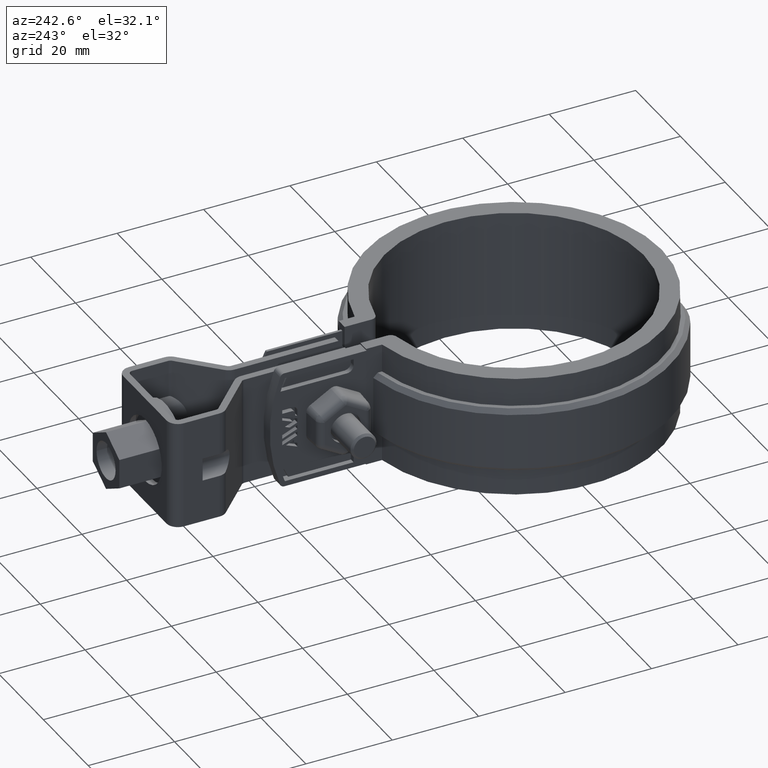
[diagram: clean part render]
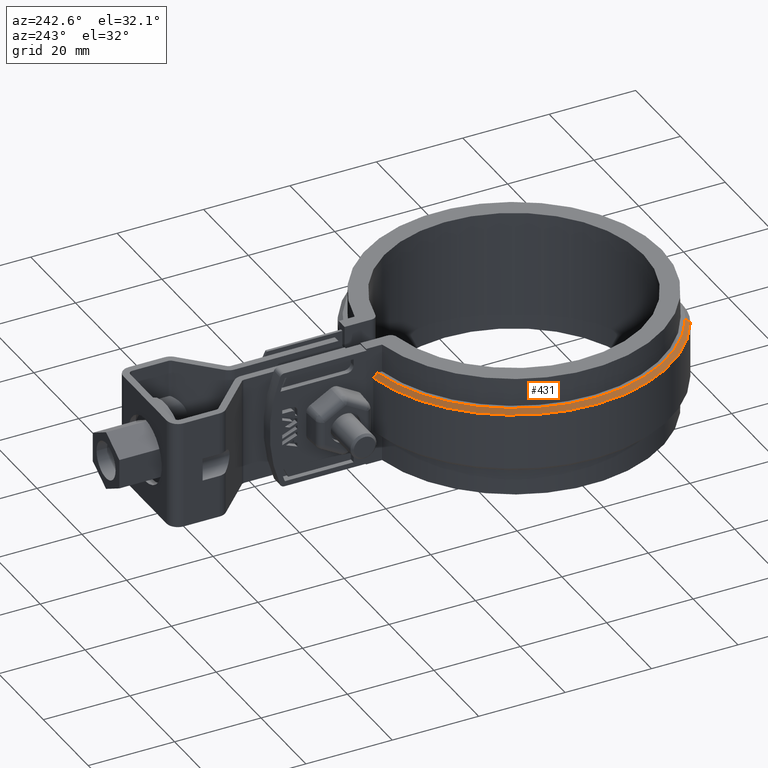
[diagram: same view with one face highlighted and labeled with its STEP entity id]
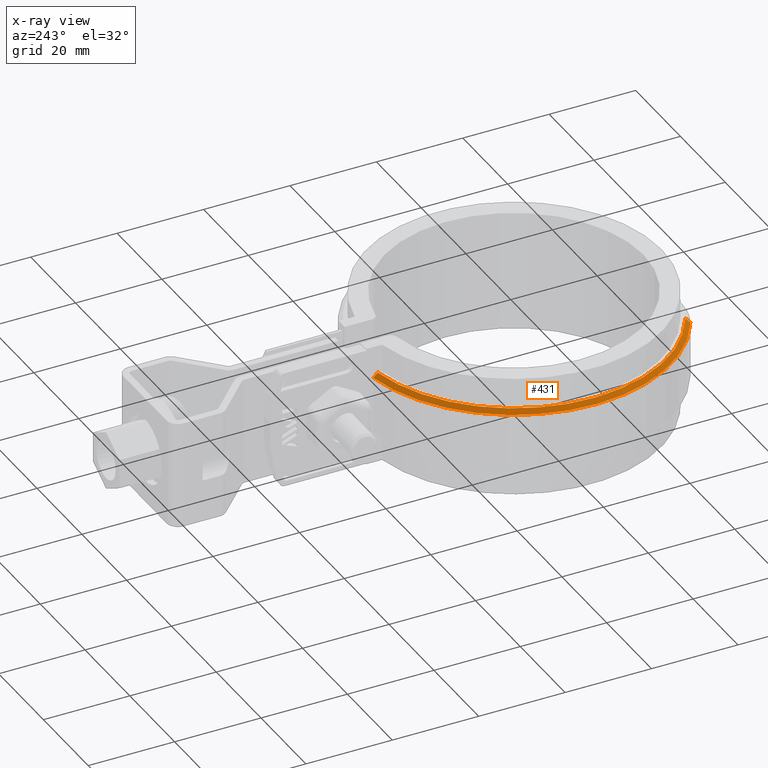
[diagram: x-ray of the same camera — body ghosted, the highlighted face saturated]
A machine part, auxiliary view. The second image highlights one B-rep face of the part: STEP entity #431.
The next image is the same camera in x-ray: the body ghosted, the highlighted face saturated — about 0% of this face is hidden behind the body in this view.
In plain terms, the highlighted conical surface has half-angle 45 deg.
Its self-contained STEP definition (entity closure, byte-faithful):
#431 = ADVANCED_FACE( '', ( #851 ), #852, .T. );
#851 = FACE_OUTER_BOUND( '', #1894, .T. );
#852 = CONICAL_SURFACE( '', #1895, 35.2450000000000, 0.785398163397450 );
#1894 = EDGE_LOOP( '', ( #4204, #4205, #4206, #4207 ) );
#1895 = AXIS2_PLACEMENT_3D( '', #4208, #4209, #4210 );
#4204 = ORIENTED_EDGE( '', *, *, #6999, .F. );
#4205 = ORIENTED_EDGE( '', *, *, #7058, .F. );
#4206 = ORIENTED_EDGE( '', *, *, #6980, .F. );
#4207 = ORIENTED_EDGE( '', *, *, #7034, .F. );
#4208 = CARTESIAN_POINT( '', ( 8.67361737988404E-016, 0.000000000000000, -5.00000000000000 ) );
#4209 = DIRECTION( '', ( 0.000000000000000, 0.000000000000000, -1.00000000000000 ) );
#4210 = DIRECTION( '', ( -1.00000000000000, 0.000000000000000, 0.000000000000000 ) );
#6980 = EDGE_CURVE( '', #8038, #8039, #8040, .T. );
#6999 = EDGE_CURVE( '', #8071, #8073, #8074, .F. );
#7034 = EDGE_CURVE( '', #8073, #8038, #8137, .F. );
#7058 = EDGE_CURVE( '', #8039, #8071, #8181, .T. );
#8038 = VERTEX_POINT( '', #10623 );
#8039 = VERTEX_POINT( '', #10624 );
#8040 = LINE( '', #10625, #10626 );
#8071 = VERTEX_POINT( '', #10735 );
#8073 = VERTEX_POINT( '', #10738 );
#8074 = B_SPLINE_CURVE_WITH_KNOTS( '', 3, ( #10739, #10740, #10741, #10742 ), .UNSPECIFIED., .F., .F., ( 4, 4 ), ( 707.149335593705, 707.150773428236 ), .UNSPECIFIED. );
#8137 = CIRCLE( '', #11014, 35.2450000000000 );
#8181 = CIRCLE( '', #11179, 36.2450000000000 );
#10623 = CARTESIAN_POINT( '', ( -16.6156729905385, -31.0826227347611, -5.00000000000000 ) );
#10624 = CARTESIAN_POINT( '', ( -17.0871064701963, -31.9645243586726, -6.00000000000000 ) );
#10625 = CARTESIAN_POINT( '', ( -16.6156729905385, -31.0826227347611, -5.00000000000000 ) );
#10626 = VECTOR( '', #13630, 1000.00000000000 );
#10735 = CARTESIAN_POINT( '', ( -6.09999999999999, 35.7280005737797, -6.00000000000000 ) );
#10738 = CARTESIAN_POINT( '', ( -6.09999999999999, 34.7131102755141, -5.00000000000000 ) );
#10739 = CARTESIAN_POINT( '', ( -6.09999999999999, 34.7131102755379, -5.00000000002346 ) );
#10740 = CARTESIAN_POINT( '', ( -6.09999999999999, 35.0514781720550, -5.33326151528786 ) );
#10741 = CARTESIAN_POINT( '', ( -6.09999999999999, 35.3897729469707, -5.66659685902334 ) );
#10742 = CARTESIAN_POINT( '', ( -6.09999999999999, 35.7280005737742, -5.99999999999464 ) );
#11014 = AXIS2_PLACEMENT_3D( '', #13682, #13683, #13684 );
#11179 = AXIS2_PLACEMENT_3D( '', #13719, #13720, #13721 );
#13630 = DIRECTION( '', ( -0.333353810344388, -0.623598618607257, -0.707106781186546 ) );
#13682 = CARTESIAN_POINT( '', ( 8.67361737988404E-016, 0.000000000000000, -5.00000000000000 ) );
#13683 = DIRECTION( '', ( 0.000000000000000, 0.000000000000000, -1.00000000000000 ) );
#13684 = DIRECTION( '', ( -1.00000000000000, 0.000000000000000, 0.000000000000000 ) );
#13719 = CARTESIAN_POINT( '', ( 8.67361737988404E-016, 0.000000000000000, -6.00000000000000 ) );
#13720 = DIRECTION( '', ( 0.000000000000000, 0.000000000000000, -1.00000000000000 ) );
#13721 = DIRECTION( '', ( -1.00000000000000, 0.000000000000000, 0.000000000000000 ) );